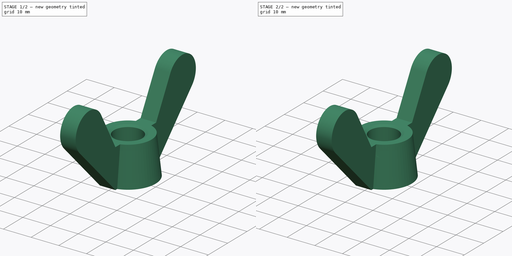
[diagram: build sequence overview — one tinted view per stage of 2, left to right]
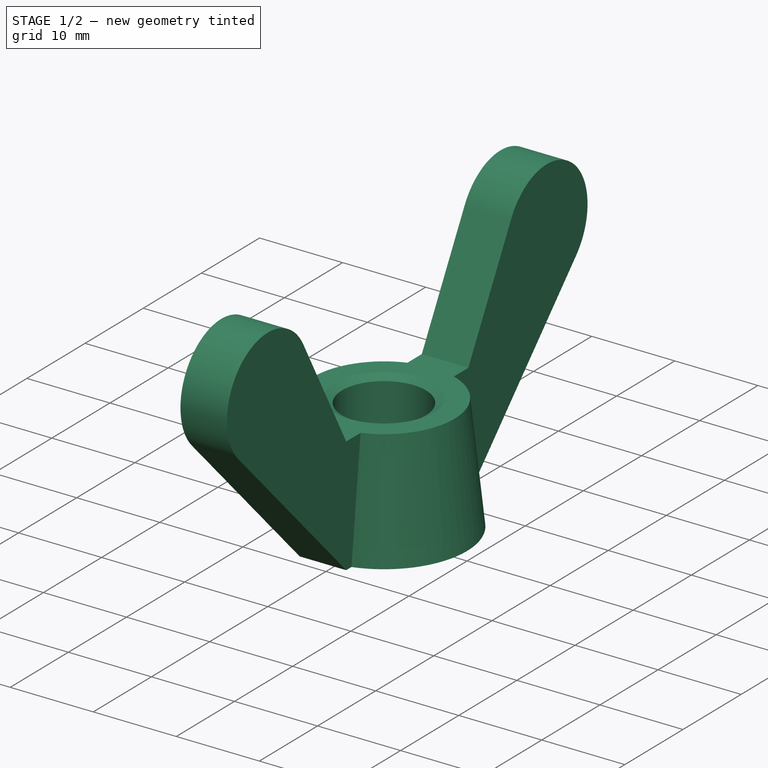
[diagram: stage 1 of 2 — iso view after this stage's code; geometry added in this stage tinted green]
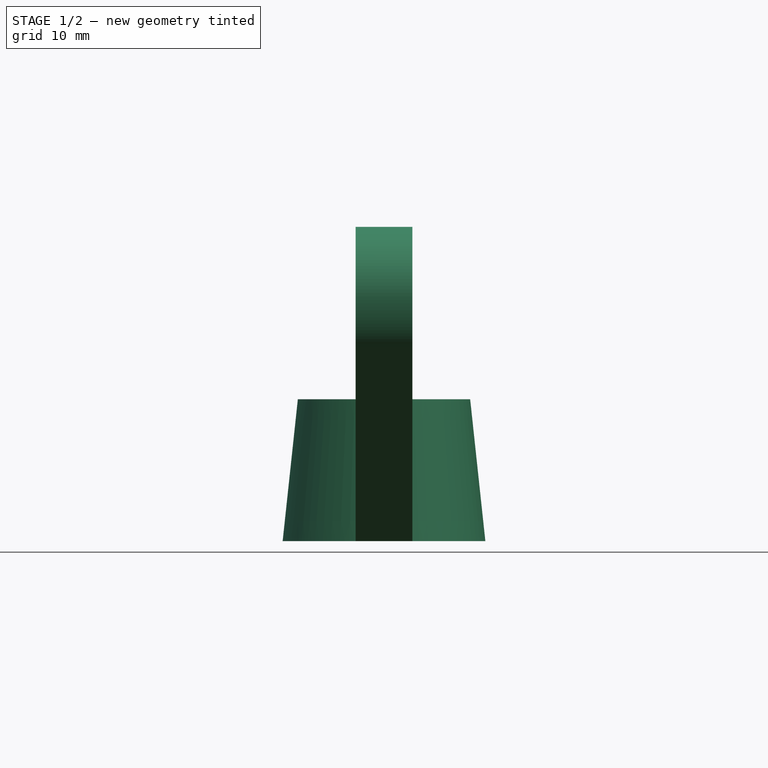
[diagram: stage 1 of 2 — front view after this stage's code; geometry added in this stage tinted green]
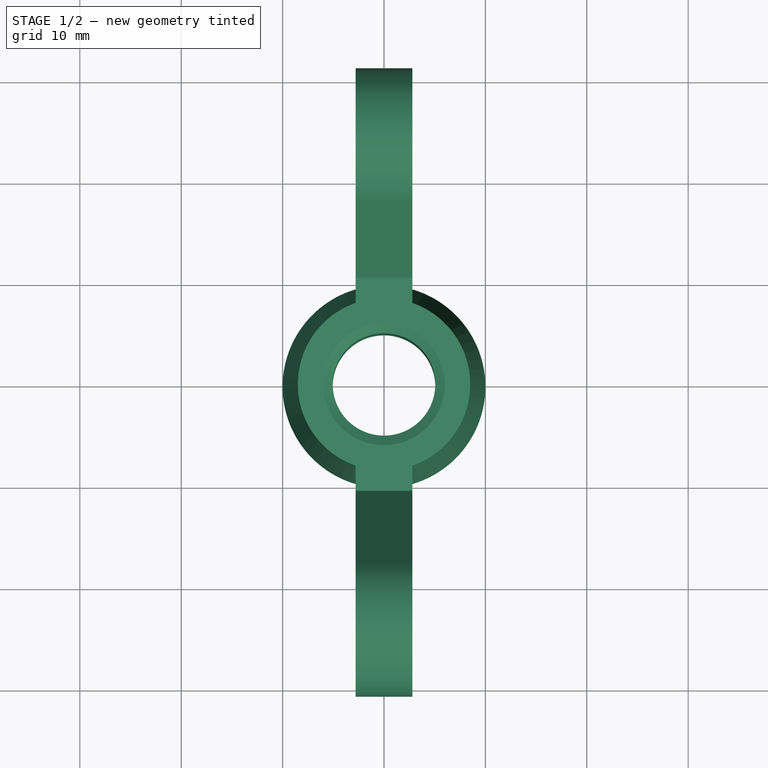
[diagram: stage 1 of 2 — top view after this stage's code; geometry added in this stage tinted green]
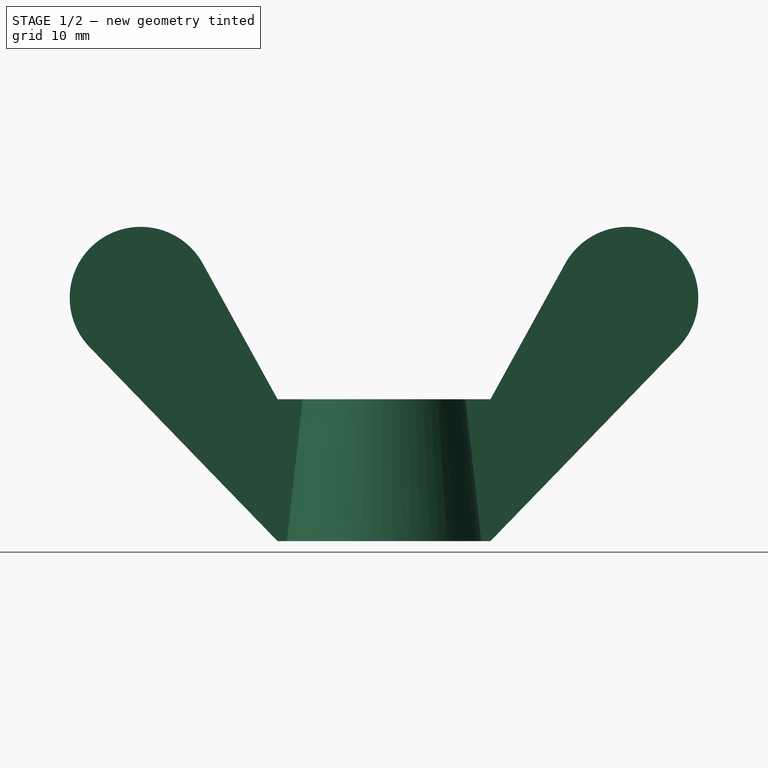
[diagram: stage 1 of 2 — right view after this stage's code; geometry added in this stage tinted green]
FCSTD DOCUMENT  (FreeCAD 0.15R4470 (Git))
Label: Fluegelmutter_DIN_315-M12
License: CC-BY 3.0
LicenseURL: http://creativecommons.org/licenses/by/3.0/
objects: Sketcher::SketchObject×2, PartDesign::Revolution×1, PartDesign::Pad×1, Part::Fuse×1
note: 7 computed .brp shape members not serialized (recipe doc carries the construction recipe); baked Part::Feature solids carry a one-line shape summary decoded from their .brp

FEATURE [Sketcher::SketchObject] Sketch
  Placement = pos=(0,0,0) rot=(0.57735,0.57735,0.57735;2.0944rad)
  sketch-geometry (7):
    g0: LineSegment StartX=6 StartY=0 StartZ=0 EndX=5.055 EndY=0.545596 EndZ=0
    g1: LineSegment StartX=5.055 StartY=0.545596 StartZ=0 EndX=5.055 EndY=13.4544 EndZ=0
    g2: LineSegment StartX=5.055 StartY=13.4544 StartZ=0 EndX=6 EndY=14 EndZ=0
    g3: LineSegment StartX=6 StartY=14 StartZ=0 EndX=8.5 EndY=14 EndZ=0
    g4: LineSegment StartX=8.5 StartY=14 StartZ=0 EndX=10 EndY=0 EndZ=0
    g5: LineSegment StartX=10 StartY=0 StartZ=0 EndX=6 EndY=0 EndZ=0
    g6: LineSegment [constr] StartX=6 StartY=14 StartZ=0 EndX=6 EndY=0 EndZ=0
  constraints (20):
    c: PointOnObject(g0,g-1)
    c: Coincident(g0,g1)
    c: Vertical(g1)
    c: Coincident(g1,g2)
    c: Coincident(g2,g3)
    c: Horizontal(g3)
    c: Coincident(g3,g4)
    c: PointOnObject(g4,g-1)
    c: Coincident(g4,g5)
    c: Coincident(g5,g0)
    c: Coincident(g6,g2)
    c: Coincident(g6,g0)
    c: Vertical(g6)
    c: Equal(g0,g2)
    c: Angle(g0,g2) = 1.0472
    c: DistanceX(g-1,g0) = 5.055
    c: DistanceX(g-1,g0) = 6
    c: DistanceX(g-1,g3) = 8.5
    c: DistanceX(g-1,g4) = 10
    c: DistanceY(g4,g3) = 14
FEATURE [PartDesign::Revolution] Revolution
  Angle = 360
  Axis = (0,0,1)
  Base = (0,0,0)
  Placement = pos=(0,0,0) rot=(0.57735,0.57735,0.57735;2.0944rad)
  ReferenceAxis = -> Sketch [V_Axis]
  Reversed = true
  Sketch = -> Sketch
FEATURE [Sketcher::SketchObject] Sketch001
  Placement = pos=(0,0,0) rot=(0.57735,0.57735,0.57735;2.0944rad)
  sketch-geometry (13):
    g0: LineSegment StartX=6.5 StartY=0 StartZ=0 EndX=6.5 EndY=14 EndZ=0
    g1: LineSegment StartX=6.5 StartY=14 StartZ=0 EndX=10.5 EndY=14 EndZ=0
    g2: LineSegment StartX=10.5 StartY=14 StartZ=0 EndX=17.8686 EndY=27.3774 EndZ=0
    g3: LineSegment StartX=6.5 StartY=0 StartZ=0 EndX=10.5 EndY=0 EndZ=0
    g4: LineSegment StartX=10.5 StartY=0 StartZ=0 EndX=29.0282 EndY=19.13 EndZ=0
    g5: ArcOfCircle CenterX=24 CenterY=24 CenterZ=0 NormalX=0 NormalY=0 NormalZ=1 Radius=7 StartAngle=5.51377 EndAngle=8.92129
    g6: LineSegment [constr] StartX=10.5 StartY=0 StartZ=0 EndX=10.5 EndY=14 EndZ=0
    g7: LineSegment StartX=-29.0282 StartY=19.1299 StartZ=0 EndX=-10.5 EndY=0 EndZ=0
    g8: LineSegment StartX=-10.5 StartY=0 StartZ=0 EndX=-6.49996 EndY=0 EndZ=0
    g9: LineSegment StartX=-6.49996 StartY=0 StartZ=0 EndX=-6.49996 EndY=14 EndZ=0
    g10: LineSegment StartX=-6.49996 StartY=14 StartZ=0 EndX=-10.5 EndY=14 EndZ=0
    g11: LineSegment StartX=-10.5 StartY=14 StartZ=0 EndX=-17.8686 EndY=27.3773 EndZ=0
    g12: ArcOfCircle CenterX=-24 CenterY=24 CenterZ=0 NormalX=0 NormalY=0 NormalZ=1 Radius=7 StartAngle=0.503483 EndAngle=3.91101
  constraints (41):
    c: PointOnObject(g0,g-1)
    c: Vertical(g0)
    c: Coincident(g0,g1)
    c: Horizontal(g1)
    c: Coincident(g1,g2)
    c: Coincident(g0,g3)
    c: PointOnObject(g3,g-1)
    c: Coincident(g3,g4)
    c: Coincident(g5,g2)
    c: Coincident(g5,g4)
    c: DistanceX(g-1,g0) = 6.5
    c: DistanceX(g-1,g3) = 10.5
    c: Coincident(g6,g3)
    c: Coincident(g6,g1)
    c: Vertical(g6)
    c: DistanceY(g0) = 14
    c: Tangent(g2,g5)
    c: Tangent(g4,g5)
    c: Equal(g5,g0)
    c: DistanceY(g5,g3) = -24
    c: DistanceX(g-1,g5) = 24
    c: Radius(g5) = 7
    c: PointOnObject(g7,g-1)
    c: Coincident(g7,g8)
    c: Horizontal(g8)
    c: Coincident(g8,g9)
    c: Vertical(g9)
    c: Coincident(g9,g10)
    c: Horizontal(g10)
    c: Coincident(g10,g11)
    c: Coincident(g12,g11)
    c: Coincident(g12,g7)
    c: Tangent(g7,g12)
    c: Tangent(g12,g11)
    c: Equal(g9,g0)
    c: Equal(g10,g1)
    c: Equal(g8,g3)
    c: Equal(g7,g4)
    c: Equal(g12,g5)
    c: Equal(g11,g2)
    c: Symmetric(g12,g5,g-2)
FEATURE [PartDesign::Pad] Pad
  Length = 5.6
  Length2 = 100
  Midplane = true
  Placement = pos=(0,0,0) rot=(0.57735,0.57735,0.57735;2.0944rad)
  Sketch = -> Sketch001
  Type = 0
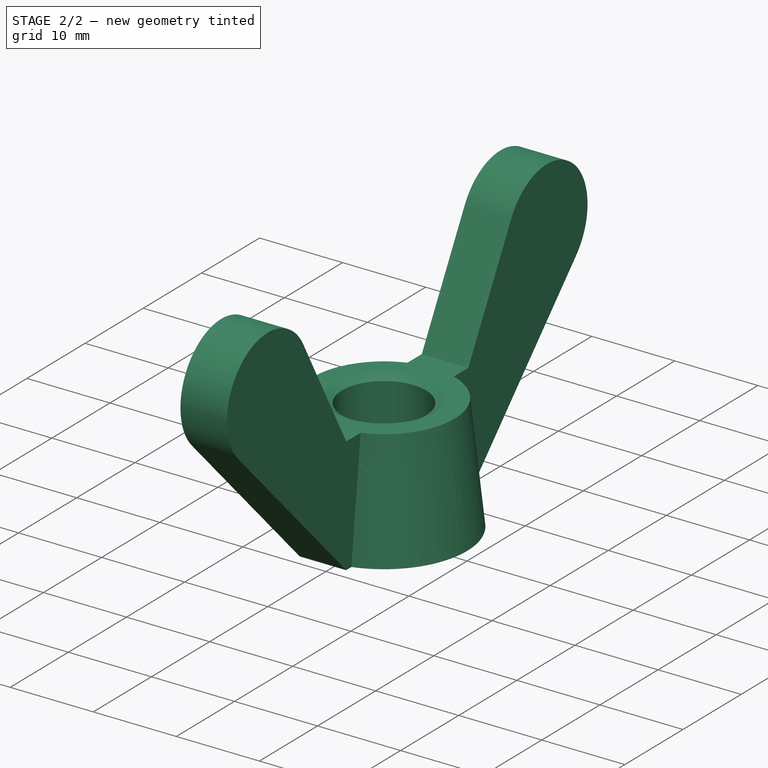
[diagram: stage 2 of 2 — iso view after this stage's code; geometry added in this stage tinted green]
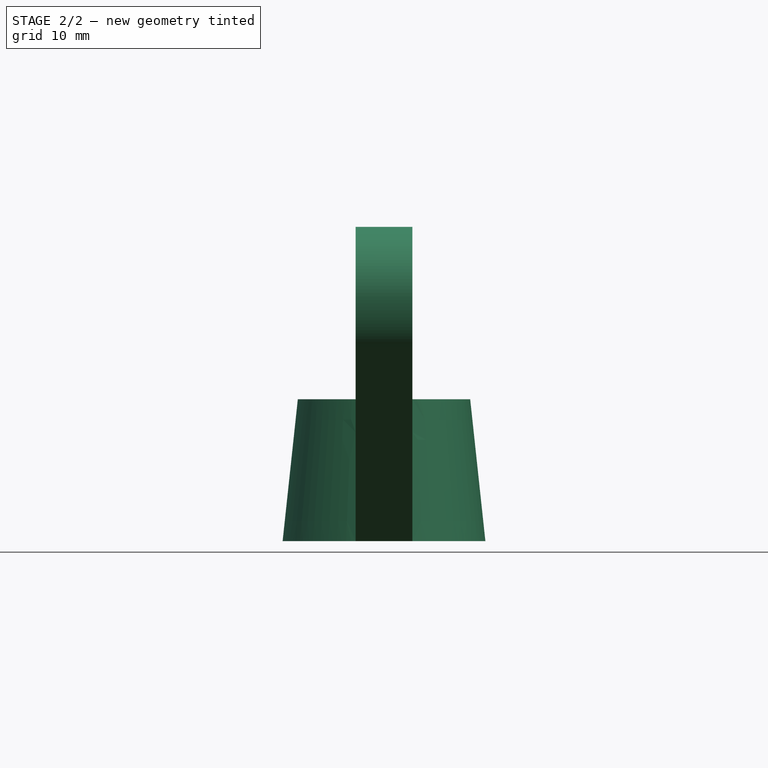
[diagram: stage 2 of 2 — front view after this stage's code; geometry added in this stage tinted green]
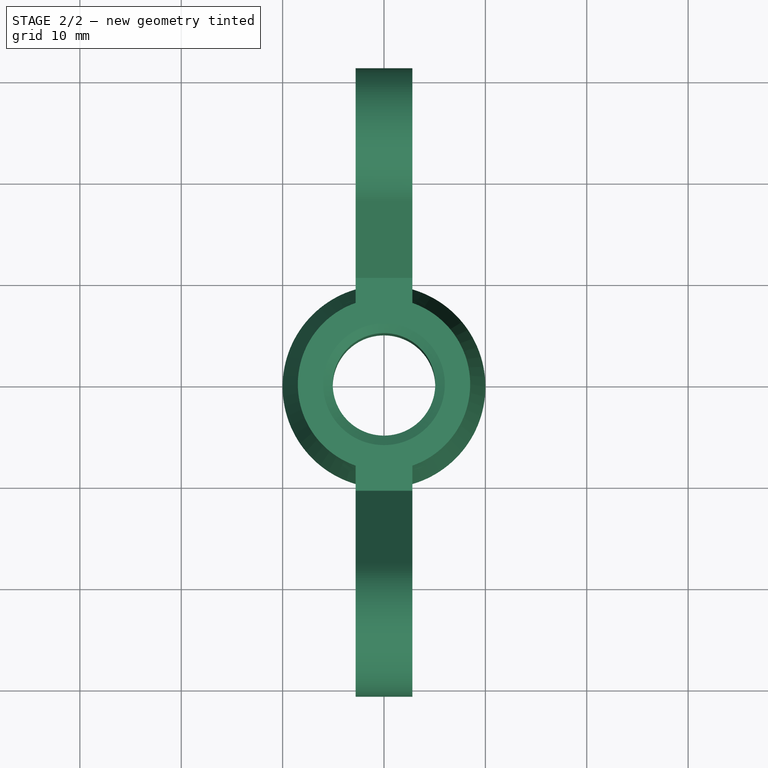
[diagram: stage 2 of 2 — top view after this stage's code; geometry added in this stage tinted green]
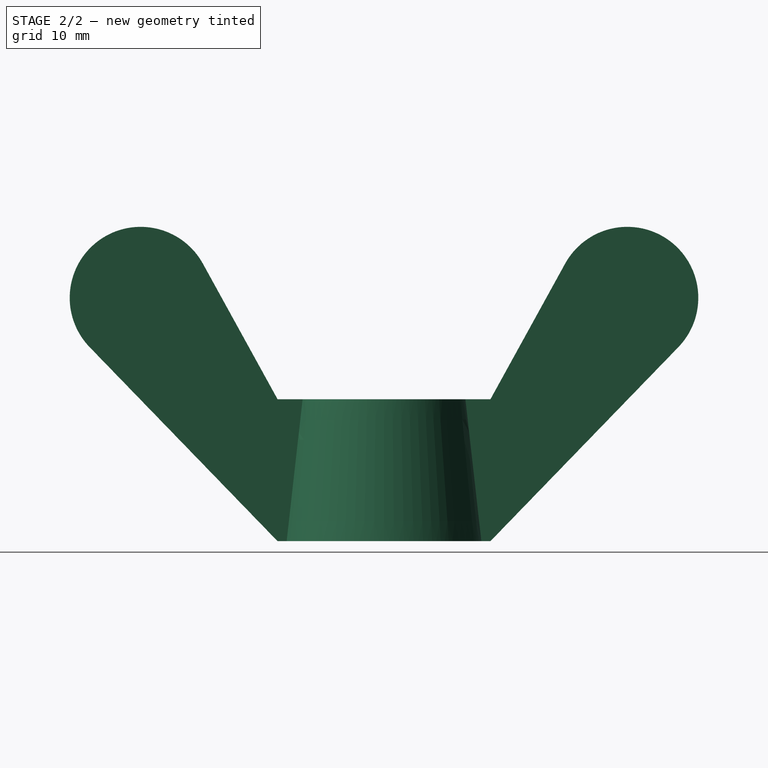
[diagram: stage 2 of 2 — right view after this stage's code; geometry added in this stage tinted green]
FEATURE [Part::Fuse] Fusion  label="Flügelmutter DIN 315 - M12 #"
  Base = -> Revolution
  Tool = -> Pad
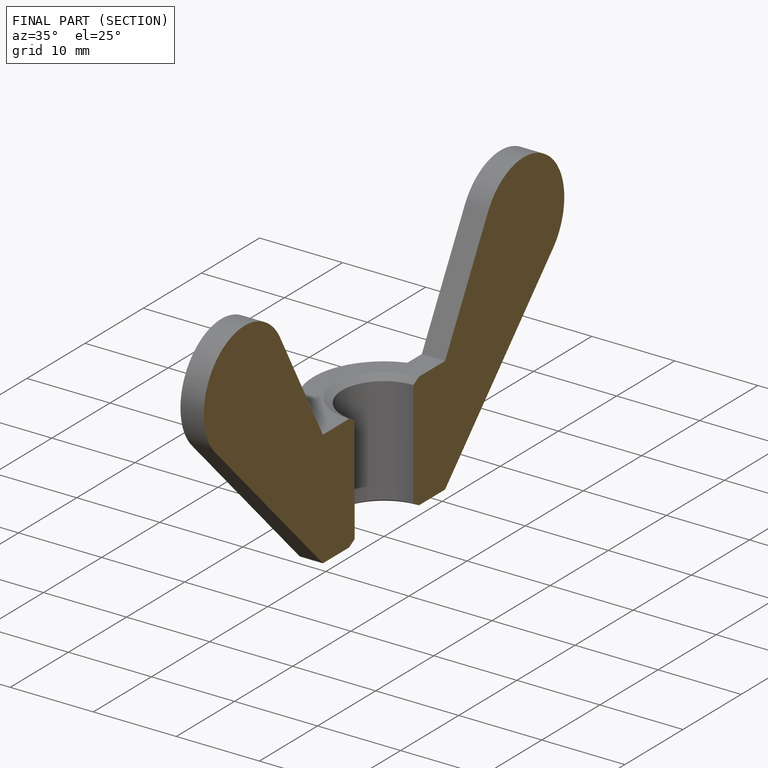
[diagram: finished part — half-section view (interior)]
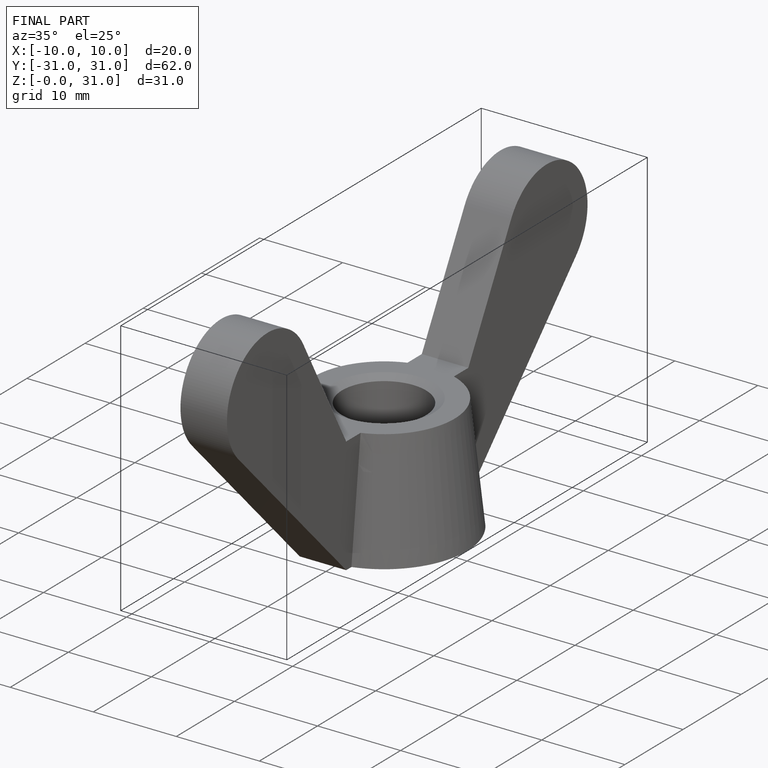
[diagram: finished part — iso view with bounding-box wireframe]
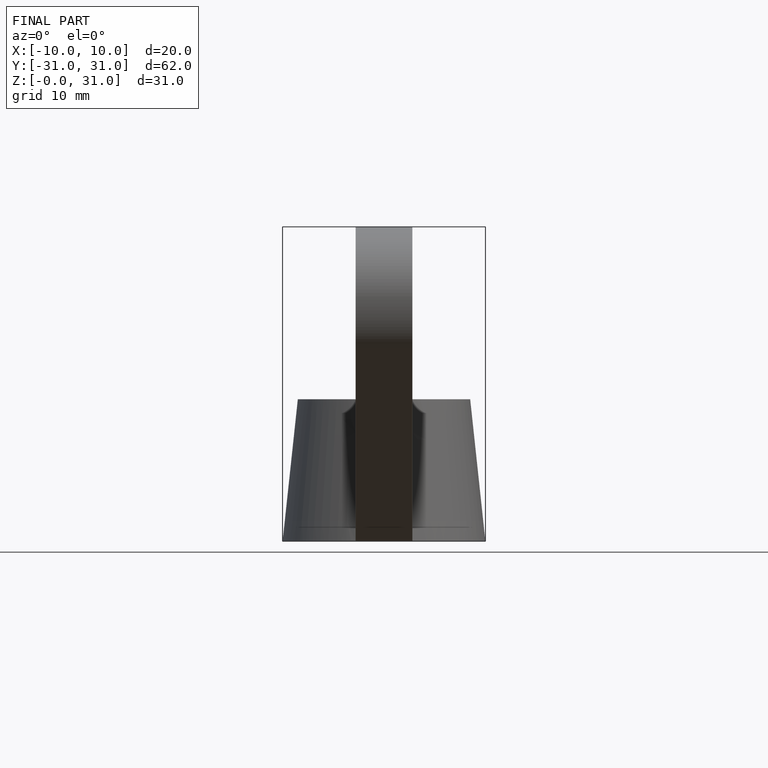
[diagram: finished part — front view with bounding-box wireframe]
